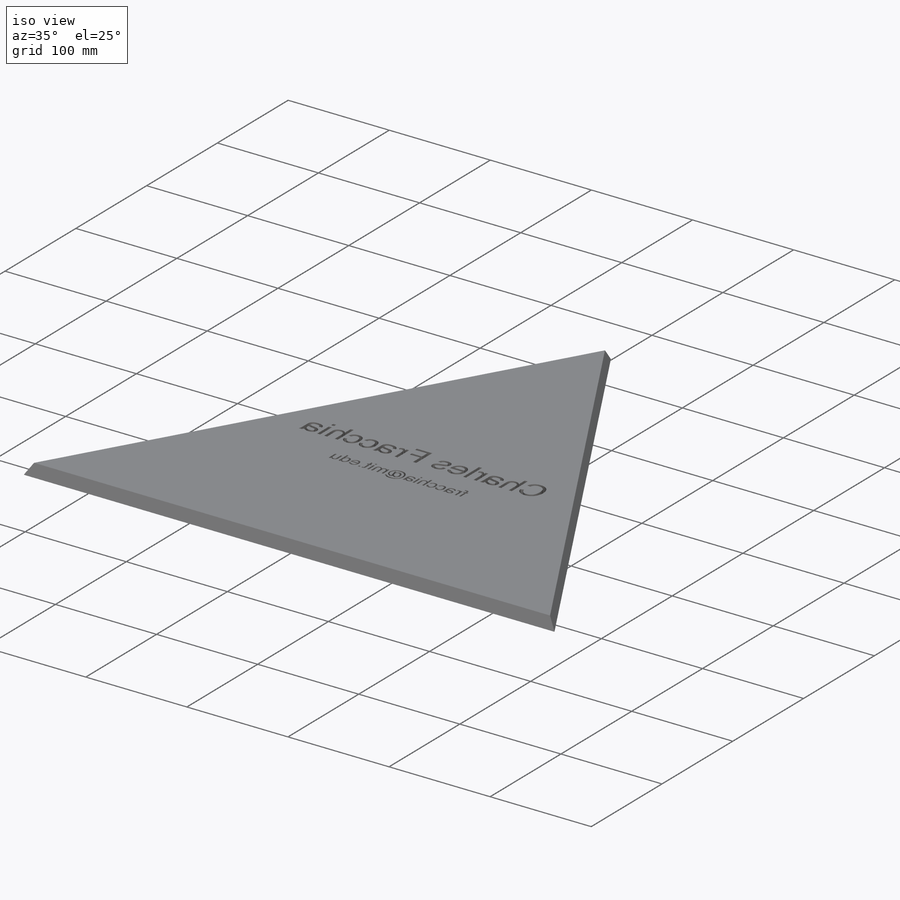
[diagram: iso view]
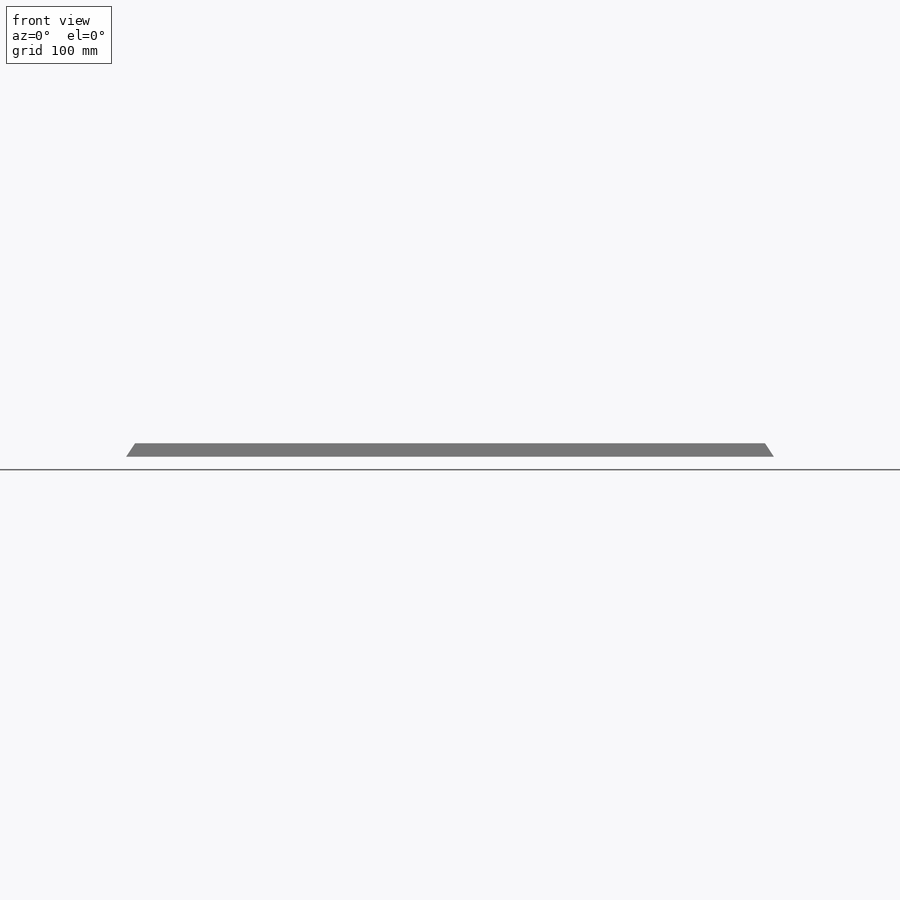
[diagram: front view]
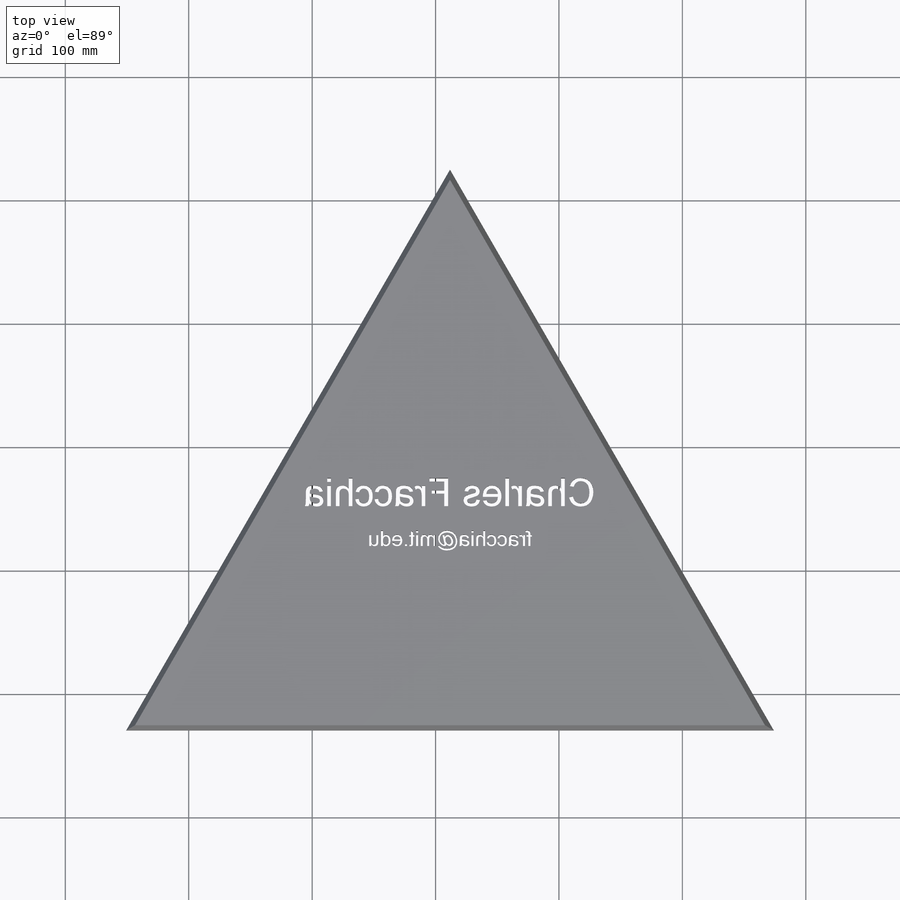
[diagram: top view]
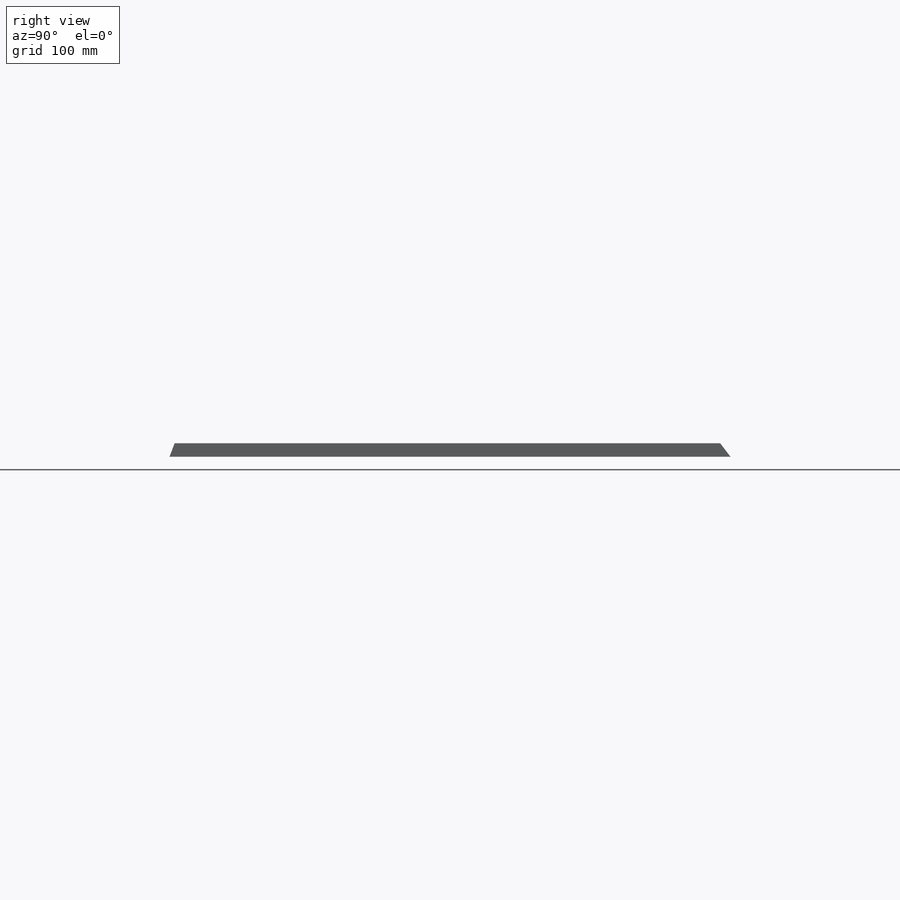
[diagram: right view]
SOLIDWORKS PART (.sldprt)
format: sldprt  version: not decoded by parser v0  size: 752,640 bytes
history: native  units: mm
features: sketch x2, chamfer x2, material x1, extrude x1, cut_extrude x1 (+11 scaffold rows collapsed)
feature tree (18):
  scaffold x11  (default folders/planes/origin — collapsed)
  material  "Material <not specified>"
  sketch  "Sketch1"  dims[D1=526.3mm]
  extrude  "Boss-Extrude1"  Depth=11mm
  chamfer  "Chamfer3"  Distance=10mm Angle=20.9deg
  chamfer  "Chamfer2"  Distance=12mm Angle=20.9deg
  sketch  "Sketch2"
  cut_extrude  "Cut-Extrude1"  Depth=11mm
decode coverage: 5 of 6 modeling features carry decoded parameters
note: suppression state not decoded; provenance and decode notes live in map.json
